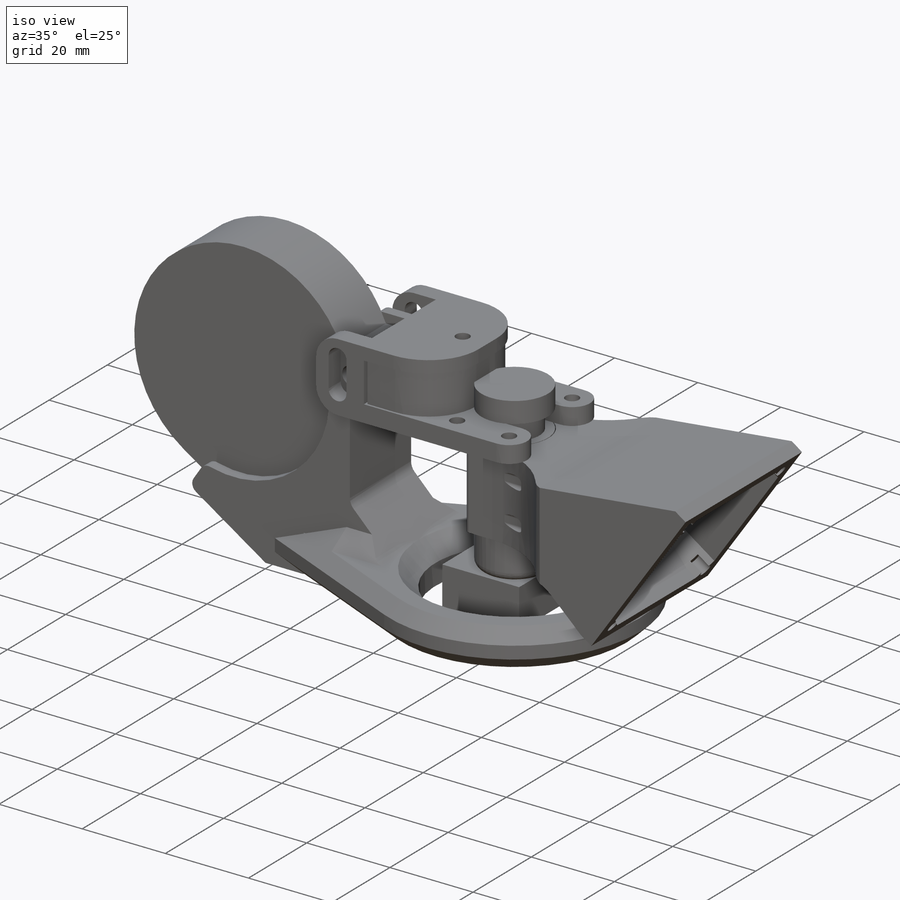
[diagram: iso view]
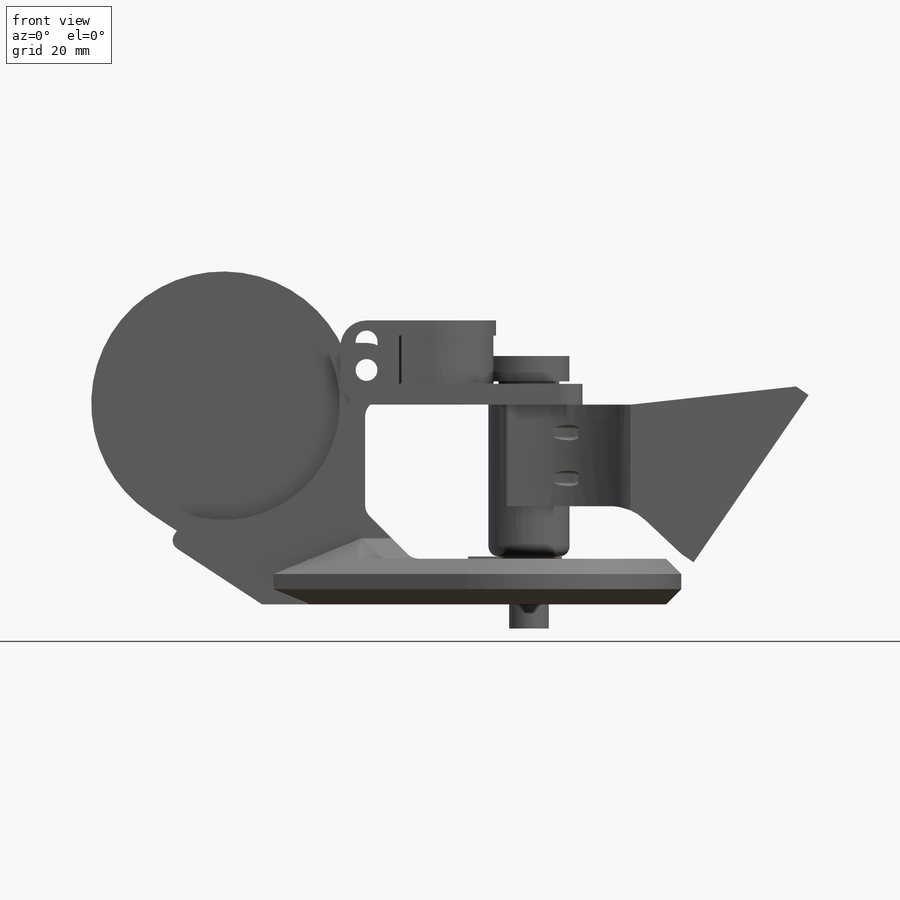
[diagram: front view]
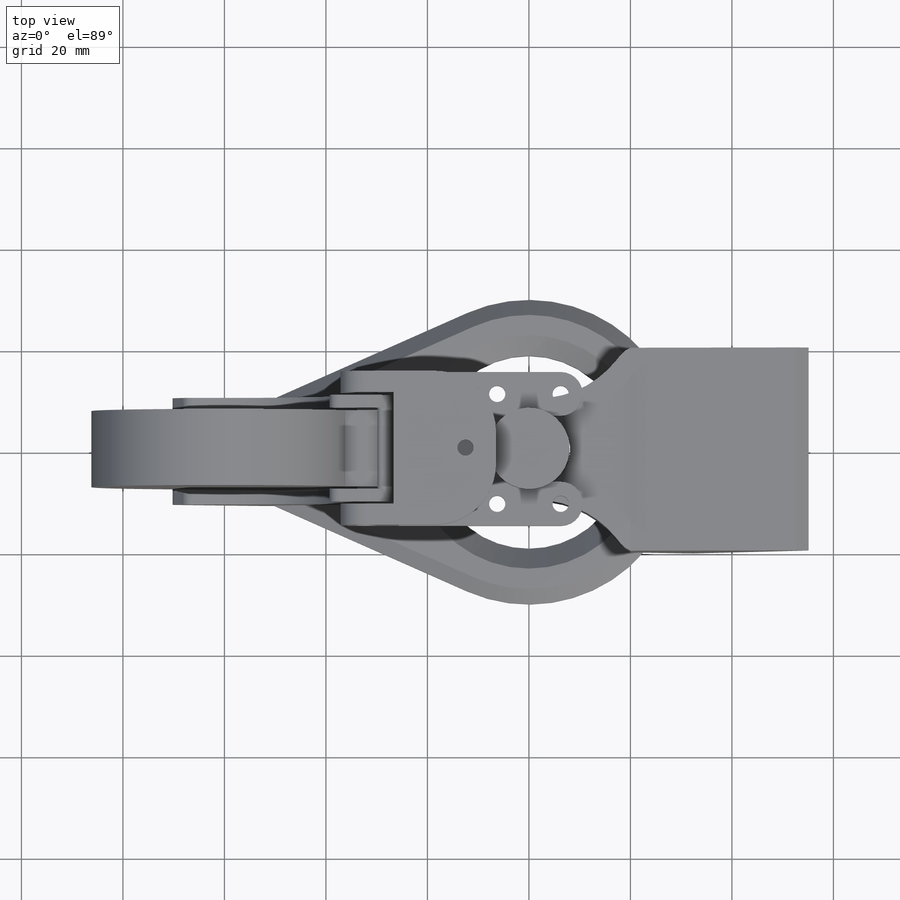
[diagram: top view]
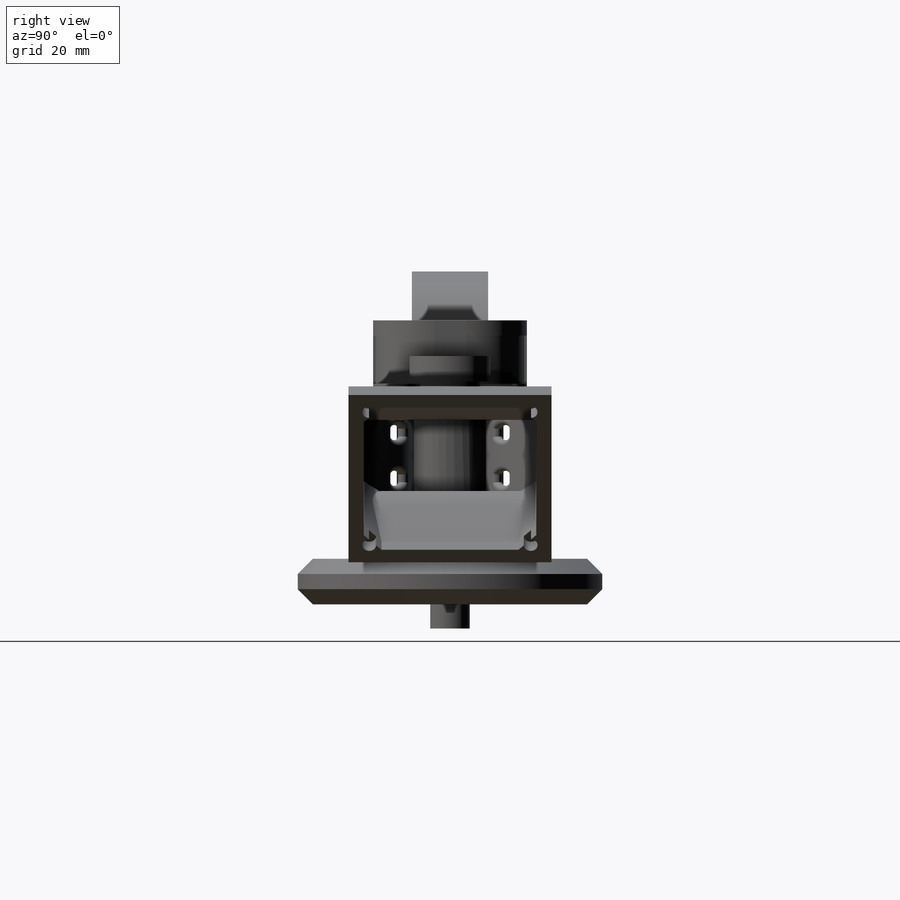
[diagram: right view]
SOLIDWORKS PART (.sldprt)
format: sldprt  version: not decoded by parser v0  size: 1,513,472 bytes
history: native  units: mm
features: sketch x27, extrude x18, fillet x8, cut_extrude x7, chamfer x6, shell x2, material x1, revolve x1, cut_revolve x1, mirror x1 (+13 scaffold rows collapsed)
feature tree (85):
  scaffold x13  (default folders/planes/origin — collapsed)
  material  "Material <not specified>"
  sketch  "Sketch1"  dims[c1.D1=54.0mm c1.D2=5.0mm c1.D3=4.6mm c1.D4=8.0mm c1.D5=13.0mm c1.D6=7.0mm c1.D7=4.6mm c2.D1=39.5mm c2.D5=6.0mm]
  revolve  "Revolve1"  Angle=360deg
  fillet  "Fillet1"  Radius=2mm
  sketch  "Sketch2"  dims[D1=18.5mm D2=15.5mm D3=12.0mm]
  extrude  "Boss-Extrude1"  Depth=9.45mm
  sketch  "Sketch3"  dims[D1=7.8mm]
  extrude  "Boss-Extrude2"  Depth=4.75mm
  sketch  "Sketch4"  dims[c1.D3=20.0mm c1.D4=20.0mm c2.D3=20.0mm c2.D7=5.0mm c2.D1=40.0mm c2.D2=3.0mm c2.D4=2.0mm c2.D5=2.0mm c2.D6=10.0mm c3.D7=~18.984606mm c3.D2=3.0mm c3.D8=1.25mm c3.D9=10.0mm c3.D1=40.0mm c4.D2=12.0mm c4.D6=2.0mm c4.D5=5.0mm]
  extrude  "Boss-Extrude3"  Depth=20mm
  sketch  "Sketch6"  dims[D1=1.0mm D2=40.0mm D3=3.0mm]
  extrude  "Boss-Extrude4"  Depth=20mm
  shell  "Shell1"  Thickness=3mm
  sketch  "Sketch7"  dims[D2=2.75mm D1=0.15mm]
  cut_extrude  "Cut-Extrude1"  [1 undecoded]
  chamfer  "Chamfer1"  Distance=3.5mm Angle=45deg
  sketch  "Sketch8"  dims[D2=2.75mm D1=32.0mm]
  cut_extrude  "Cut-Extrude2"  Depth=3.2mm
  sketch  "Sketch10"  dims[D1=1.5mm D2=3.0mm D3=1.0mm D4=4.5mm]
  cut_extrude  "Cut-Extrude3"  [1 undecoded]
  fillet  "Fillet2"  Radius=1mm
  fillet  "Fillet4"  Radius=10mm
  sketch  "Sketch19"  dims[c1.D5=4.3mm c1.D8=26.0mm c1.D11=3.35mm c1.D1=52.0mm c1.D2=52.0mm c1.D3=6.0mm c1.D4=47.0mm c1.D6=20.0mm c2.D2=4.0mm c2.D7=32.0mm c2.D9=26.0mm c2.D10=~4.216496mm c2.D11=~2.443927mm c2.D12=~2.911675mm c3.D2=2.0mm c3.D1=1.2mm]
  extrude  "Boss-Extrude6"  Depth=7.5mm
  sketch  "Sketch20"  dims[D1=8.0mm D3=3.0mm D2=10.0mm]
  extrude  "Boss-Extrude7"  Depth=9mm
  chamfer  "Chamfer8"  Distance=3mm Angle=45deg
  shell  "Shell6"  Thickness=1mm
  sketch  "Sketch56"  dims[c1.D1=3.0mm c1.D2=1.0mm c2.D2=45.0deg]
  cut_revolve  "Cut-Revolve3"  Angle=360deg
  sketch  "Sketch46"  dims[c1.D3=7.0mm c1.D5=2.0mm c1.D7=10.0mm c1.D4=2.0mm c1.D6=20.0mm c2.D3=~10.670284mm c3.D3=45.0deg c4.D3=~12.271136mm c5.D3=45.0deg c5.D7=~22.583832mm c6.D3=~13.111366mm c7.D3=45.0deg c7.D7=~19.208825mm c8.D3=~13.111366mm c9.D3=45.0deg c9.D7=~2.473508mm c10.D7=45.0deg c10.D1=3.0mm c10.D2=3.0mm c10.D3=3.0mm c10.D4=3.0mm c11.D1=3.0mm c11.D2=2.0mm c11.D3=2.0mm c11.D4=2.0mm c12.D3=2.0mm]
  extrude  "Boss-Extrude26"  Depth=3mm
  sketch  "Sketch57"  dims[D1=0.0mm]
  cut_extrude  "Cut-Extrude20"  Depth=5.5mm
  sketch  "Sketch47"  dims[D3=1.0mm D4=2.0mm D1=0.5mm D2=2.0mm]
  cut_extrude  "Cut-Extrude13"  Depth=0.5mm
  sketch  "Sketch55"  dims[c1.D1=~16.385189mm c2.D1=~4.11593deg c3.D1=2.0mm]
  cut_extrude  "Cut-Extrude19"  [1 undecoded]
  chamfer  "Chamfer14"  Distance=4mm Angle=45deg
  chamfer  "Chamfer13"  Distance=4mm Angle=45deg
  chamfer  "Chamfer15"  Distance=3.8mm Angle=45deg
  fillet  "Fillet25"  Radius=3mm
  sketch  "Sketch67"
  extrude  "Boss-Extrude35"  [1 undecoded]
  fillet  "Fillet23"  Radius=2mm
  sketch  "Sketch68"  dims[D1=1.0mm]
  extrude  "Boss-Extrude36"  [1 undecoded]
  sketch  "Sketch69"
  extrude  "Boss-Extrude38"  [1 undecoded]
  sketch  "Sketch70"
  cut_extrude  "Cut-Extrude21"  [1 undecoded]
  fillet  "Fillet26"  Radius=1mm
  sketch  "Sketch71"  dims[c1.D3=3.2mm c1.D5=7.0mm c1.D7=~16.38915mm c1.D2=25.0mm c1.D6=60.0deg c2.D5=60.0deg c2.D6=12.5mm c2.D7=2.5mm c2.D8=1.0mm c3.D6=30.0mm c3.D1=0.5mm c3.D4=6.0]
  extrude  "Boss-Extrude39"  Depth=0.5mm
  sketch  "Sketch72"  dims[c1.D1=4.0mm c1.D2=8.0mm c1.D3=6.0mm c1.D5=2.0mm c1.D6=~8.863844mm c2.D2=3.0mm c2.D4=3.0mm]
  extrude  "Boss-Extrude40"  Depth=2mm
  mirror  "Mirror1"
  sketch  "Sketch73"  dims[D1=0.5mm]
  extrude  "Boss-Extrude41"  [1 undecoded]
  fillet  "Fillet27"  Radius=12mm
  sketch  "Sketch78"  dims[D1=10.0mm D2=3.0mm]
  extrude  "Boss-Extrude43"  [1 undecoded]
  chamfer  "Chamfer20"  Distance=1mm Angle=45deg
  fillet  "Fillet29"  Radius=1.5mm
  sketch  "Sketch85"  dims[D1=0.0mm D2=0.0mm]
  extrude  "Boss-Extrude50"  Depth=0.5mm
  sketch  "Sketch86"  dims[D1=0.0mm]
  extrude  "Boss-Extrude51"  Depth=0.5mm
  sketch  "Sketch79"
  extrude  "Boss-Extrude44"  Depth=0.5mm
  sketch  "Sketch84"  dims[c1.D2=0.5mm c1.D3=0.5mm c1.D4=~17.374913mm c2.D3=0.5mm c2.D6=0.5mm c2.D7=0.5mm c2.D1=0.5mm c2.D4=0.5mm c2.D5=0.5mm c2.D8=0.5mm]
  extrude  "Boss-Extrude49"  [1 undecoded]
decode coverage: 56 of 71 modeling features carry decoded parameters
note: ~ marks probable driven/reference dimensions
note: 10 parameter values undecoded
summary: no parameter record found for 10 features
note: suppression state not decoded; provenance and decode notes live in map.json
